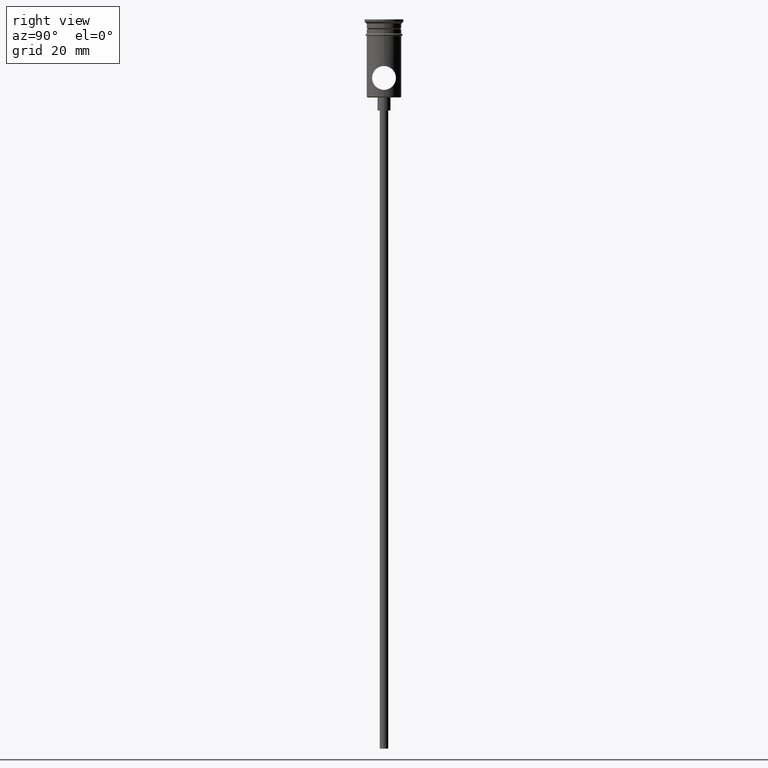
[diagram: clean part render]
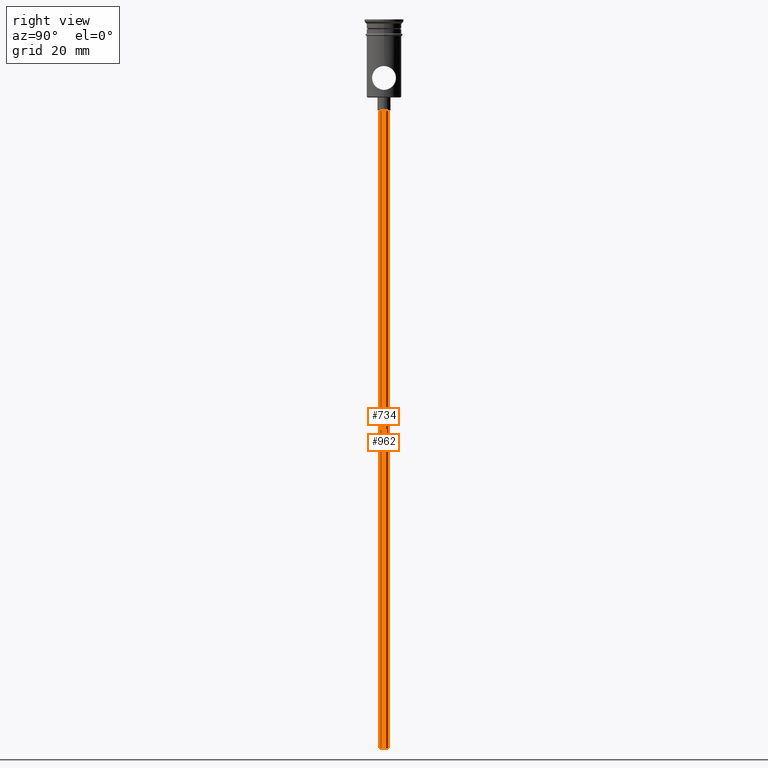
[diagram: same view with one multi-face feature highlighted, each face labeled with its STEP entity id]
A machine part, right view. The highlighted faces form ONE feature: a constant-radius fillet chain: 2 tangent blend faces with common blend radius 1 mm. The faces share edges in the B-rep.
Their STEP definitions:
[1] entity #734 (Cylinder):
#11 = VECTOR ( 'NONE', #130, 1000.000000000000000 ) ;
#37 = DIRECTION ( 'NONE',  ( 0.000000000000000000, 0.000000000000000000, -1.000000000000000000 ) ) ;
#51 = FACE_OUTER_BOUND ( 'NONE', #403, .T. ) ;
#130 = DIRECTION ( 'NONE',  ( -0.000000000000000000, -0.000000000000000000, 1.000000000000000000 ) ) ;
#145 = VECTOR ( 'NONE', #1343, 1000.000000000000000 ) ;
#185 = EDGE_CURVE ( 'NONE', #888, #370, #1272, .T. ) ;
#188 = LINE ( 'NONE', #754, #11 ) ;
#247 = ORIENTED_EDGE ( 'NONE', *, *, #795, .T. ) ;
#249 = DIRECTION ( 'NONE',  ( -1.000000000000000000, 0.000000000000000000, 0.000000000000000000 ) ) ;
#250 = CARTESIAN_POINT ( 'NONE',  ( 0.000000000000000000, 0.000000000000000000, -167.9999999999999716 ) ) ;
#306 = CARTESIAN_POINT ( 'NONE',  ( 0.000000000000000000, 0.000000000000000000, -20.99999999999999645 ) ) ;
#321 = DIRECTION ( 'NONE',  ( 0.000000000000000000, 0.000000000000000000, -1.000000000000000000 ) ) ;
#370 = VERTEX_POINT ( 'NONE', #945 ) ;
#403 = EDGE_LOOP ( 'NONE', ( #1310, #1244, #247, #814 ) ) ;
#573 = VERTEX_POINT ( 'NONE', #755 ) ;
#596 = DIRECTION ( 'NONE',  ( -0.000000000000000000, -0.000000000000000000, 1.000000000000000000 ) ) ;
#718 = AXIS2_PLACEMENT_3D ( 'NONE', #250, #596, #802 ) ;
#734 = ADVANCED_FACE ( 'NONE', ( #51 ), #899, .T. ) ;
#754 = CARTESIAN_POINT ( 'NONE',  ( -0.9999999999999997780, 1.224646799147352961E-16, -167.9999999999999716 ) ) ;
#755 = CARTESIAN_POINT ( 'NONE',  ( 0.9999999999999997780, 0.000000000000000000, -167.9999999999999716 ) ) ;
#795 = EDGE_CURVE ( 'NONE', #573, #888, #1118, .T. ) ;
#802 = DIRECTION ( 'NONE',  ( 1.000000000000000000, 0.000000000000000000, 0.000000000000000000 ) ) ;
#814 = ORIENTED_EDGE ( 'NONE', *, *, #185, .T. ) ;
#888 = VERTEX_POINT ( 'NONE', #1061 ) ;
#899 = CYLINDRICAL_SURFACE ( 'NONE', #718, 0.9999999999999997780 ) ;
#908 = CARTESIAN_POINT ( 'NONE',  ( 0.9999999999999997780, 0.000000000000000000, -167.9999999999999716 ) ) ;
#945 = CARTESIAN_POINT ( 'NONE',  ( -0.9999999999999997780, 1.224646799147352961E-16, -20.99999999999999645 ) ) ;
#1061 = CARTESIAN_POINT ( 'NONE',  ( 0.9999999999999997780, 0.000000000000000000, -20.99999999999999645 ) ) ;
#1086 = CARTESIAN_POINT ( 'NONE',  ( -0.9999999999999997780, 1.224646799147352961E-16, -167.9999999999999716 ) ) ;
#1093 = VERTEX_POINT ( 'NONE', #1086 ) ;
#1098 = CARTESIAN_POINT ( 'NONE',  ( 0.000000000000000000, 0.000000000000000000, -167.9999999999999716 ) ) ;
#1118 = LINE ( 'NONE', #908, #145 ) ;
#1153 = CIRCLE ( 'NONE', #1339, 0.9999999999999997780 ) ;
#1197 = AXIS2_PLACEMENT_3D ( 'NONE', #306, #321, #1392 ) ;
#1222 = EDGE_CURVE ( 'NONE', #1093, #370, #188, .T. ) ;
#1244 = ORIENTED_EDGE ( 'NONE', *, *, #1279, .F. ) ;
#1272 = CIRCLE ( 'NONE', #1197, 0.9999999999999997780 ) ;
#1279 = EDGE_CURVE ( 'NONE', #573, #1093, #1153, .T. ) ;
#1310 = ORIENTED_EDGE ( 'NONE', *, *, #1222, .F. ) ;
#1339 = AXIS2_PLACEMENT_3D ( 'NONE', #1098, #37, #249 ) ;
#1343 = DIRECTION ( 'NONE',  ( -0.000000000000000000, -0.000000000000000000, 1.000000000000000000 ) ) ;
#1392 = DIRECTION ( 'NONE',  ( -1.000000000000000000, 0.000000000000000000, 0.000000000000000000 ) ) ;
[2] entity #962 (Cylinder):
#11 = VECTOR ( 'NONE', #130, 1000.000000000000000 ) ;
#17 = EDGE_LOOP ( 'NONE', ( #587, #1259, #495, #170 ) ) ;
#130 = DIRECTION ( 'NONE',  ( -0.000000000000000000, -0.000000000000000000, 1.000000000000000000 ) ) ;
#145 = VECTOR ( 'NONE', #1343, 1000.000000000000000 ) ;
#170 = ORIENTED_EDGE ( 'NONE', *, *, #795, .F. ) ;
#188 = LINE ( 'NONE', #754, #11 ) ;
#240 = CARTESIAN_POINT ( 'NONE',  ( 0.000000000000000000, 0.000000000000000000, -20.99999999999999645 ) ) ;
#248 = EDGE_CURVE ( 'NONE', #370, #888, #604, .T. ) ;
#261 = AXIS2_PLACEMENT_3D ( 'NONE', #537, #872, #772 ) ;
#309 = CIRCLE ( 'NONE', #840, 0.9999999999999997780 ) ;
#361 = DIRECTION ( 'NONE',  ( -1.000000000000000000, 0.000000000000000000, 0.000000000000000000 ) ) ;
#370 = VERTEX_POINT ( 'NONE', #945 ) ;
#446 = FACE_OUTER_BOUND ( 'NONE', #17, .T. ) ;
#495 = ORIENTED_EDGE ( 'NONE', *, *, #248, .T. ) ;
#537 = CARTESIAN_POINT ( 'NONE',  ( 0.000000000000000000, 0.000000000000000000, -167.9999999999999716 ) ) ;
#573 = VERTEX_POINT ( 'NONE', #755 ) ;
#587 = ORIENTED_EDGE ( 'NONE', *, *, #766, .F. ) ;
#604 = CIRCLE ( 'NONE', #651, 0.9999999999999997780 ) ;
#651 = AXIS2_PLACEMENT_3D ( 'NONE', #240, #671, #361 ) ;
#671 = DIRECTION ( 'NONE',  ( 0.000000000000000000, 0.000000000000000000, -1.000000000000000000 ) ) ;
#685 = DIRECTION ( 'NONE',  ( 0.000000000000000000, 0.000000000000000000, -1.000000000000000000 ) ) ;
#754 = CARTESIAN_POINT ( 'NONE',  ( -0.9999999999999997780, 1.224646799147352961E-16, -167.9999999999999716 ) ) ;
#755 = CARTESIAN_POINT ( 'NONE',  ( 0.9999999999999997780, 0.000000000000000000, -167.9999999999999716 ) ) ;
#766 = EDGE_CURVE ( 'NONE', #1093, #573, #309, .T. ) ;
#772 = DIRECTION ( 'NONE',  ( 1.000000000000000000, 0.000000000000000000, 0.000000000000000000 ) ) ;
#795 = EDGE_CURVE ( 'NONE', #573, #888, #1118, .T. ) ;
#840 = AXIS2_PLACEMENT_3D ( 'NONE', #1231, #685, #1010 ) ;
#872 = DIRECTION ( 'NONE',  ( -0.000000000000000000, -0.000000000000000000, 1.000000000000000000 ) ) ;
#888 = VERTEX_POINT ( 'NONE', #1061 ) ;
#908 = CARTESIAN_POINT ( 'NONE',  ( 0.9999999999999997780, 0.000000000000000000, -167.9999999999999716 ) ) ;
#945 = CARTESIAN_POINT ( 'NONE',  ( -0.9999999999999997780, 1.224646799147352961E-16, -20.99999999999999645 ) ) ;
#961 = CYLINDRICAL_SURFACE ( 'NONE', #261, 0.9999999999999997780 ) ;
#962 = ADVANCED_FACE ( 'NONE', ( #446 ), #961, .T. ) ;
#1010 = DIRECTION ( 'NONE',  ( -1.000000000000000000, 0.000000000000000000, 0.000000000000000000 ) ) ;
#1061 = CARTESIAN_POINT ( 'NONE',  ( 0.9999999999999997780, 0.000000000000000000, -20.99999999999999645 ) ) ;
#1086 = CARTESIAN_POINT ( 'NONE',  ( -0.9999999999999997780, 1.224646799147352961E-16, -167.9999999999999716 ) ) ;
#1093 = VERTEX_POINT ( 'NONE', #1086 ) ;
#1118 = LINE ( 'NONE', #908, #145 ) ;
#1222 = EDGE_CURVE ( 'NONE', #1093, #370, #188, .T. ) ;
#1231 = CARTESIAN_POINT ( 'NONE',  ( 0.000000000000000000, 0.000000000000000000, -167.9999999999999716 ) ) ;
#1259 = ORIENTED_EDGE ( 'NONE', *, *, #1222, .T. ) ;
#1343 = DIRECTION ( 'NONE',  ( -0.000000000000000000, -0.000000000000000000, 1.000000000000000000 ) ) ;